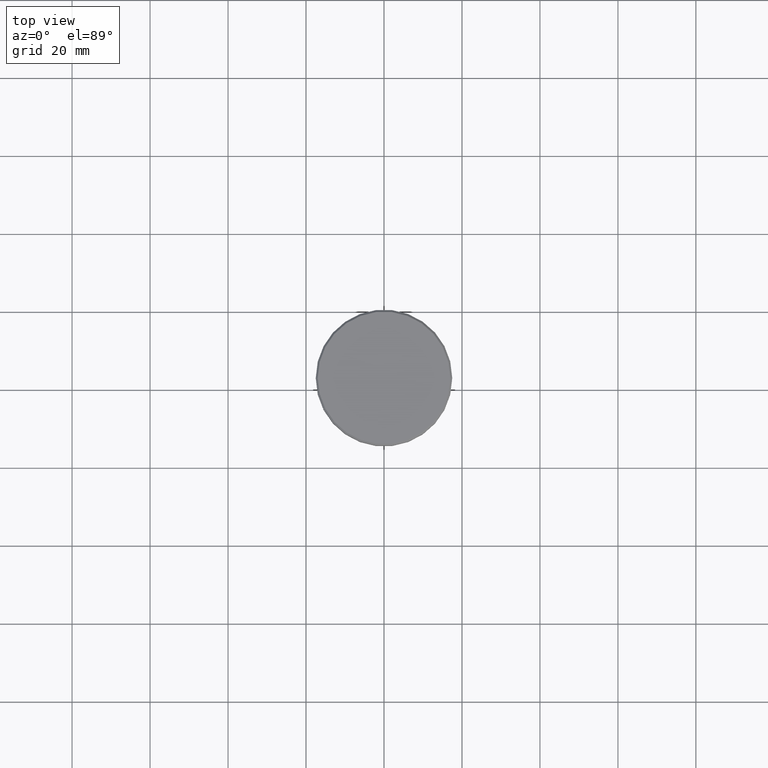
[diagram: clean part render]
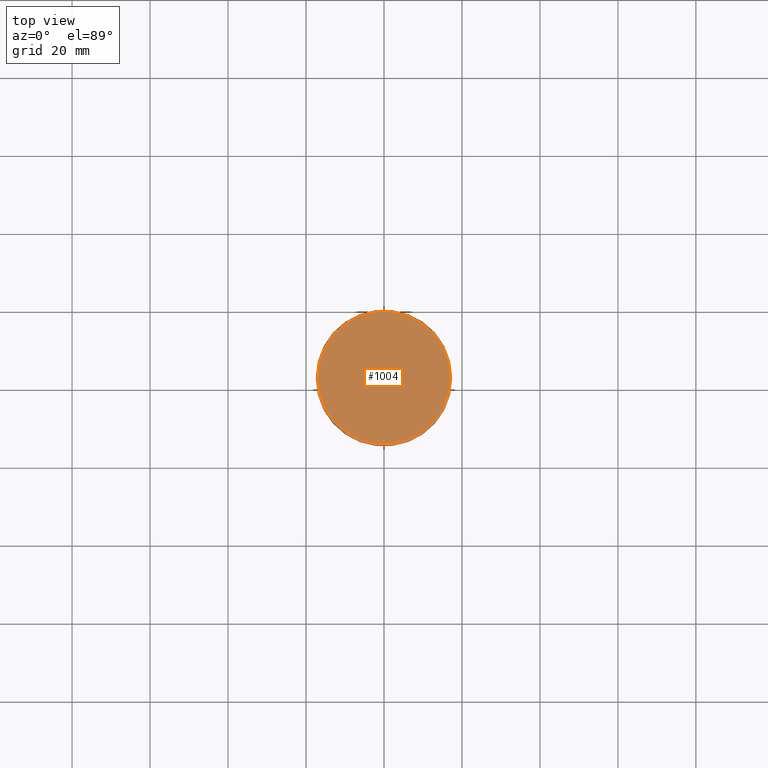
[diagram: same view with one face highlighted and labeled with its STEP entity id]
A machine part, top view. The second image highlights one B-rep face of the part: STEP entity #1004.
In plain terms, the highlighted planar face has unit normal (0, -0, 1).
Its self-contained STEP definition (entity closure, byte-faithful):
#20 = EDGE_CURVE ( 'NONE', #1048, #734, #825, .T. ) ;
#121 = CARTESIAN_POINT ( 'NONE',  ( 0.000000000000000000, 0.000000000000000000, 0.000000000000000000 ) ) ;
#123 = CIRCLE ( 'NONE', #284, 17.00000000000001421 ) ;
#136 = DIRECTION ( 'NONE',  ( 1.000000000000000000, 0.000000000000000000, 0.000000000000000000 ) ) ;
#139 = DIRECTION ( 'NONE',  ( 1.000000000000000000, 0.000000000000000000, 0.000000000000000000 ) ) ;
#141 = CARTESIAN_POINT ( 'NONE',  ( 0.000000000000000000, 0.000000000000000000, 0.000000000000000000 ) ) ;
#241 = PLANE ( 'NONE',  #532 ) ;
#284 = AXIS2_PLACEMENT_3D ( 'NONE', #141, #341, #136 ) ;
#317 = AXIS2_PLACEMENT_3D ( 'NONE', #121, #414, #580 ) ;
#341 = DIRECTION ( 'NONE',  ( -0.000000000000000000, -0.000000000000000000, 1.000000000000000000 ) ) ;
#414 = DIRECTION ( 'NONE',  ( -0.000000000000000000, -0.000000000000000000, 1.000000000000000000 ) ) ;
#419 = CARTESIAN_POINT ( 'NONE',  ( -17.00000000000001421, 0.000000000000000000, 0.000000000000000000 ) ) ;
#518 = FACE_OUTER_BOUND ( 'NONE', #885, .T. ) ;
#532 = AXIS2_PLACEMENT_3D ( 'NONE', #588, #1145, #139 ) ;
#580 = DIRECTION ( 'NONE',  ( 1.000000000000000000, 0.000000000000000000, 0.000000000000000000 ) ) ;
#588 = CARTESIAN_POINT ( 'NONE',  ( 0.000000000000000000, 0.000000000000000000, 0.000000000000000000 ) ) ;
#734 = VERTEX_POINT ( 'NONE', #1146 ) ;
#766 = EDGE_CURVE ( 'NONE', #734, #1048, #123, .T. ) ;
#825 = CIRCLE ( 'NONE', #317, 17.00000000000001421 ) ;
#832 = ORIENTED_EDGE ( 'NONE', *, *, #20, .T. ) ;
#860 = ORIENTED_EDGE ( 'NONE', *, *, #766, .T. ) ;
#885 = EDGE_LOOP ( 'NONE', ( #832, #860 ) ) ;
#1004 = ADVANCED_FACE ( 'NONE', ( #518 ), #241, .T. ) ;
#1048 = VERTEX_POINT ( 'NONE', #419 ) ;
#1145 = DIRECTION ( 'NONE',  ( 0.000000000000000000, -0.000000000000000000, 1.000000000000000000 ) ) ;
#1146 = CARTESIAN_POINT ( 'NONE',  ( 17.00000000000001421, 2.112515728529185250E-15, 0.000000000000000000 ) ) ;